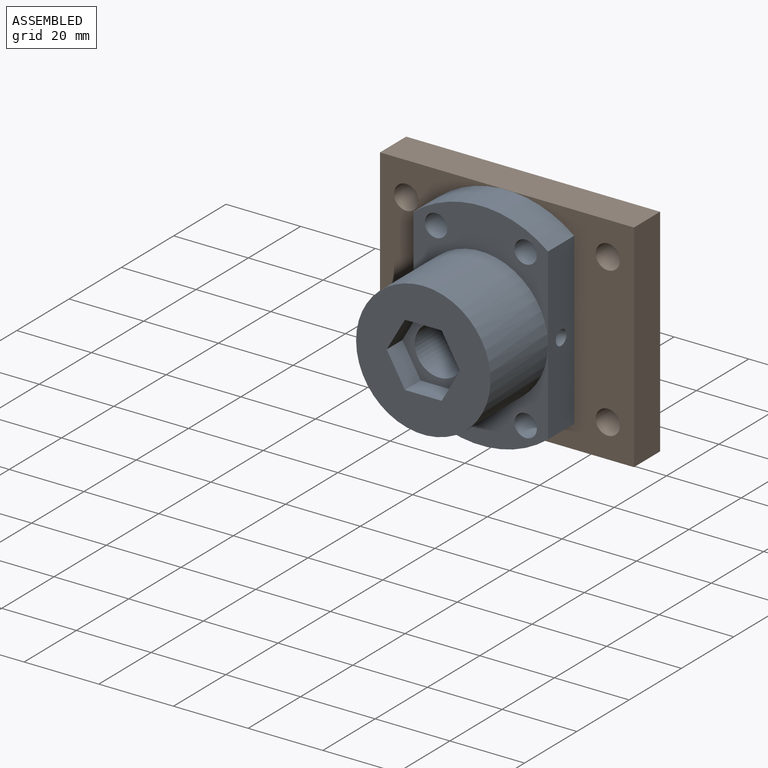
[diagram: assembled view]
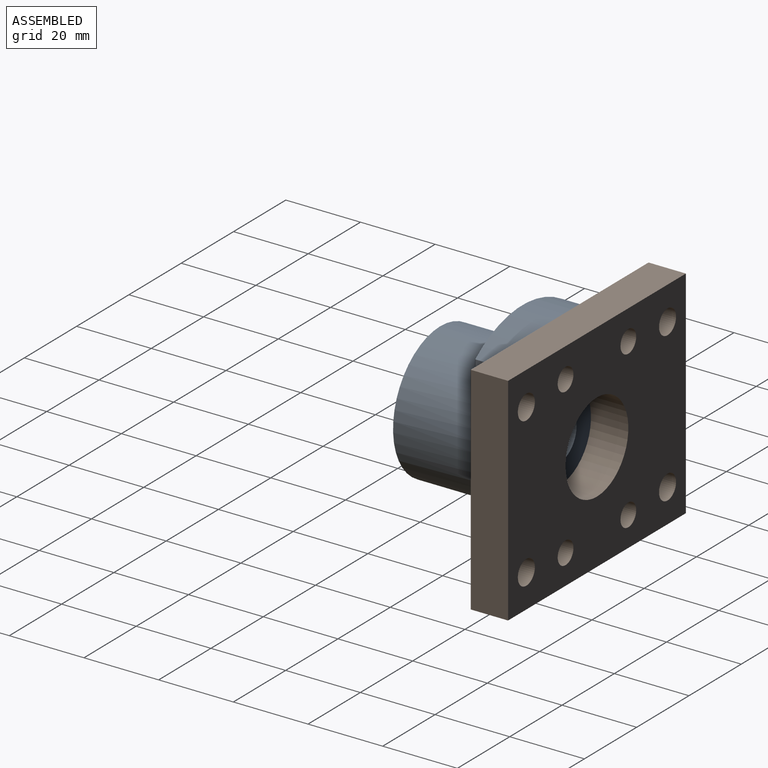
[diagram: assembled view, second angle]
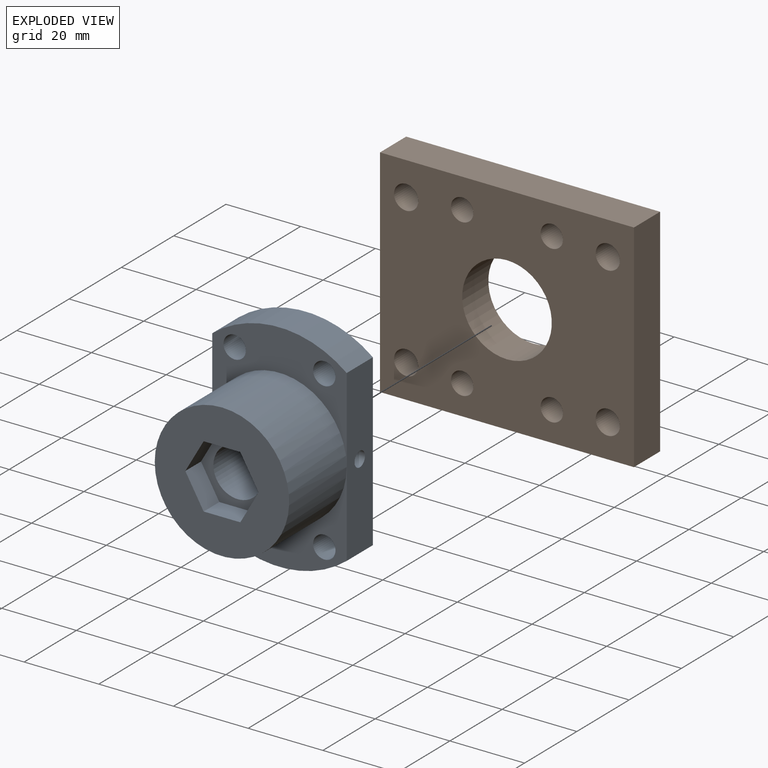
[diagram: exploded view]
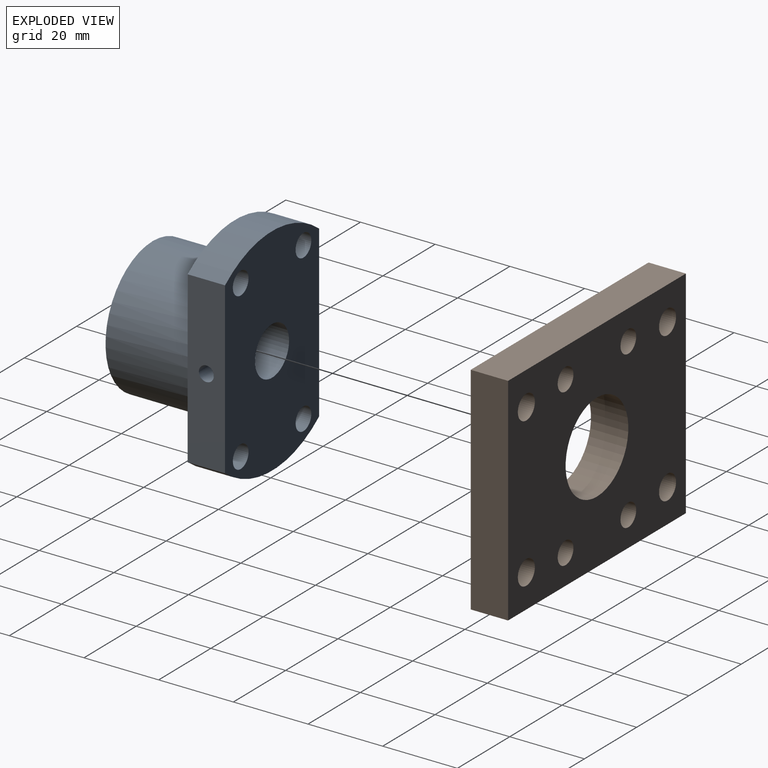
[diagram: exploded view, second angle]
ASSEMBLY  parts=2 mates=2
PART A: 23 faces, bbox 58x32x36 mm
  f0: plane 36x36mm, normal (0,-1,0), area 767.6mm2, adj f13,f15,f16,f17,f18,f19,f20
  f1: cylinder r=6.5mm len=26mm, axis (0,-1,0), area 1061.9mm2, adj f12,f14
  f2: plane 36x29mm, normal (0,-1,0), area 406.9mm2, adj f3,f5,f6,f7,f8,f13
  f3: plane 45.48x10mm, normal (0,0,-1), area 442.2mm2, adj f2,f4,f6,f11,f12,f21
  f4: cylinder r=29mm len=36mm, axis (0,1,0), area 388.4mm2, adj f3,f5,f11,f12
  f5: plane 45.48x10mm, normal (0,0,1), area 454.8mm2, adj f2,f4,f6,f11,f12
  f6: cylinder r=29mm len=36mm, axis (0,1,0), area 388.4mm2, adj f2,f3,f5,f12
  f7: cylinder r=3mm len=10mm, axis (0,1,0), area 188.5mm2, adj f2,f12
  f8: cylinder r=3mm len=10mm, axis (0,1,0), area 188.5mm2, adj f2,f12
  f9: cylinder r=3mm len=10mm, axis (0,1,0), area 188.5mm2, adj f11,f12
  f10: cylinder r=3mm len=10mm, axis (0,1,0), area 188.5mm2, adj f11,f12
  f11: plane 36x29mm, normal (0,-1,0), area 406.9mm2, adj f3,f4,f5,f9,f10,f13
  f12: plane 58x36mm, normal (0,1,0), area 1699mm2, adj f1,f3,f4,f5,f6,f7,f8,f9
  f13: cylinder r=18mm len=36mm, axis (0,1,0), area 2488.1mm2, adj f0,f2,f11
  f14: plane 19.63x17mm, normal (0,-1,0), area 117.5mm2, adj f1,f15,f16,f17,f18,f19,f20
  f15: plane 8.5x6mm, normal (-0.5,0,-0.87), area 58.9mm2, adj f0,f14,f16,f20
  f16: plane 8.5x6mm, normal (0.5,0,-0.87), area 58.9mm2, adj f0,f14,f15,f17
  f17: plane 9.82x6mm, normal (1,0,0), area 58.9mm2, adj f0,f14,f16,f18
  f18: plane 8.5x6mm, normal (0.5,0,0.87), area 58.9mm2, adj f0,f14,f17,f19
  f19: plane 8.5x6mm, normal (-0.5,0,0.87), area 58.9mm2, adj f0,f14,f18,f20
  f20: plane 9.82x6mm, normal (-1,0,0), area 58.9mm2, adj f0,f14,f15,f19
  f21: cylinder r=2mm len=5mm, axis (0,0,-1), area 62.8mm2, adj f3,f22
  f22: plane 4x4mm, normal (0,0,-1), area 12.6mm2, adj f21
PART B: 15 faces, bbox 58x10x68 mm
  f0: plane 68x10mm, normal (-1,0,0), area 680mm2, adj f1,f4,f13,f14
  f1: plane 58x10mm, normal (0,0,-1), area 580mm2, adj f0,f2,f13,f14
  f2: plane 68x10mm, normal (1,0,0), area 680mm2, adj f1,f4,f13,f14
  f3: cylinder r=3.25mm len=10mm, axis (0,1,0), area 204.2mm2, adj f13,f14
  f4: plane 58x10mm, normal (0,0,1), area 580mm2, adj f0,f2,f13,f14
  f5: cylinder r=12mm len=24mm, axis (0,1,0), area 754mm2, adj f13,f14
  f6: cylinder r=3.25mm len=10mm, axis (0,1,0), area 204.2mm2, adj f13,f14
  f7: cylinder r=3.25mm len=10mm, axis (0,1,0), area 204.2mm2, adj f13,f14
  f8: cylinder r=3.25mm len=10mm, axis (0,1,0), area 204.2mm2, adj f13,f14
  f9: cylinder r=3mm len=10mm, axis (0,1,0), area 188.5mm2, adj f13,f14
  f10: cylinder r=3mm len=10mm, axis (0,1,0), area 188.5mm2, adj f13,f14
  f11: cylinder r=3mm len=10mm, axis (0,1,0), area 188.5mm2, adj f13,f14
  f12: cylinder r=3mm len=10mm, axis (0,1,0), area 188.5mm2, adj f13,f14
  f13: plane 68x58mm, normal (0,-1,0), area 3245.8mm2, adj f0,f1,f2,f3,f4,f5,f6,f7
  f14: plane 68x58mm, normal (0,1,0), area 3245.8mm2, adj f0,f1,f2,f3,f4,f5,f6,f7
PLACE A rot(axis=(0,-1,0),90deg) t=(-100.59,56.95,195.78)mm
PLACE B rot(axis=(0,-1,0),90deg) t=(-100.59,66.95,195.78)mm fixed
MATE parallel B.f12 <-> A.f10  axis (0,-1,0) through (-112.59,56.95,216.78)mm
MATE parallel B.f5 <-> A.f10  axis (0,-1,0) through (-100.59,56.95,195.78)mm
